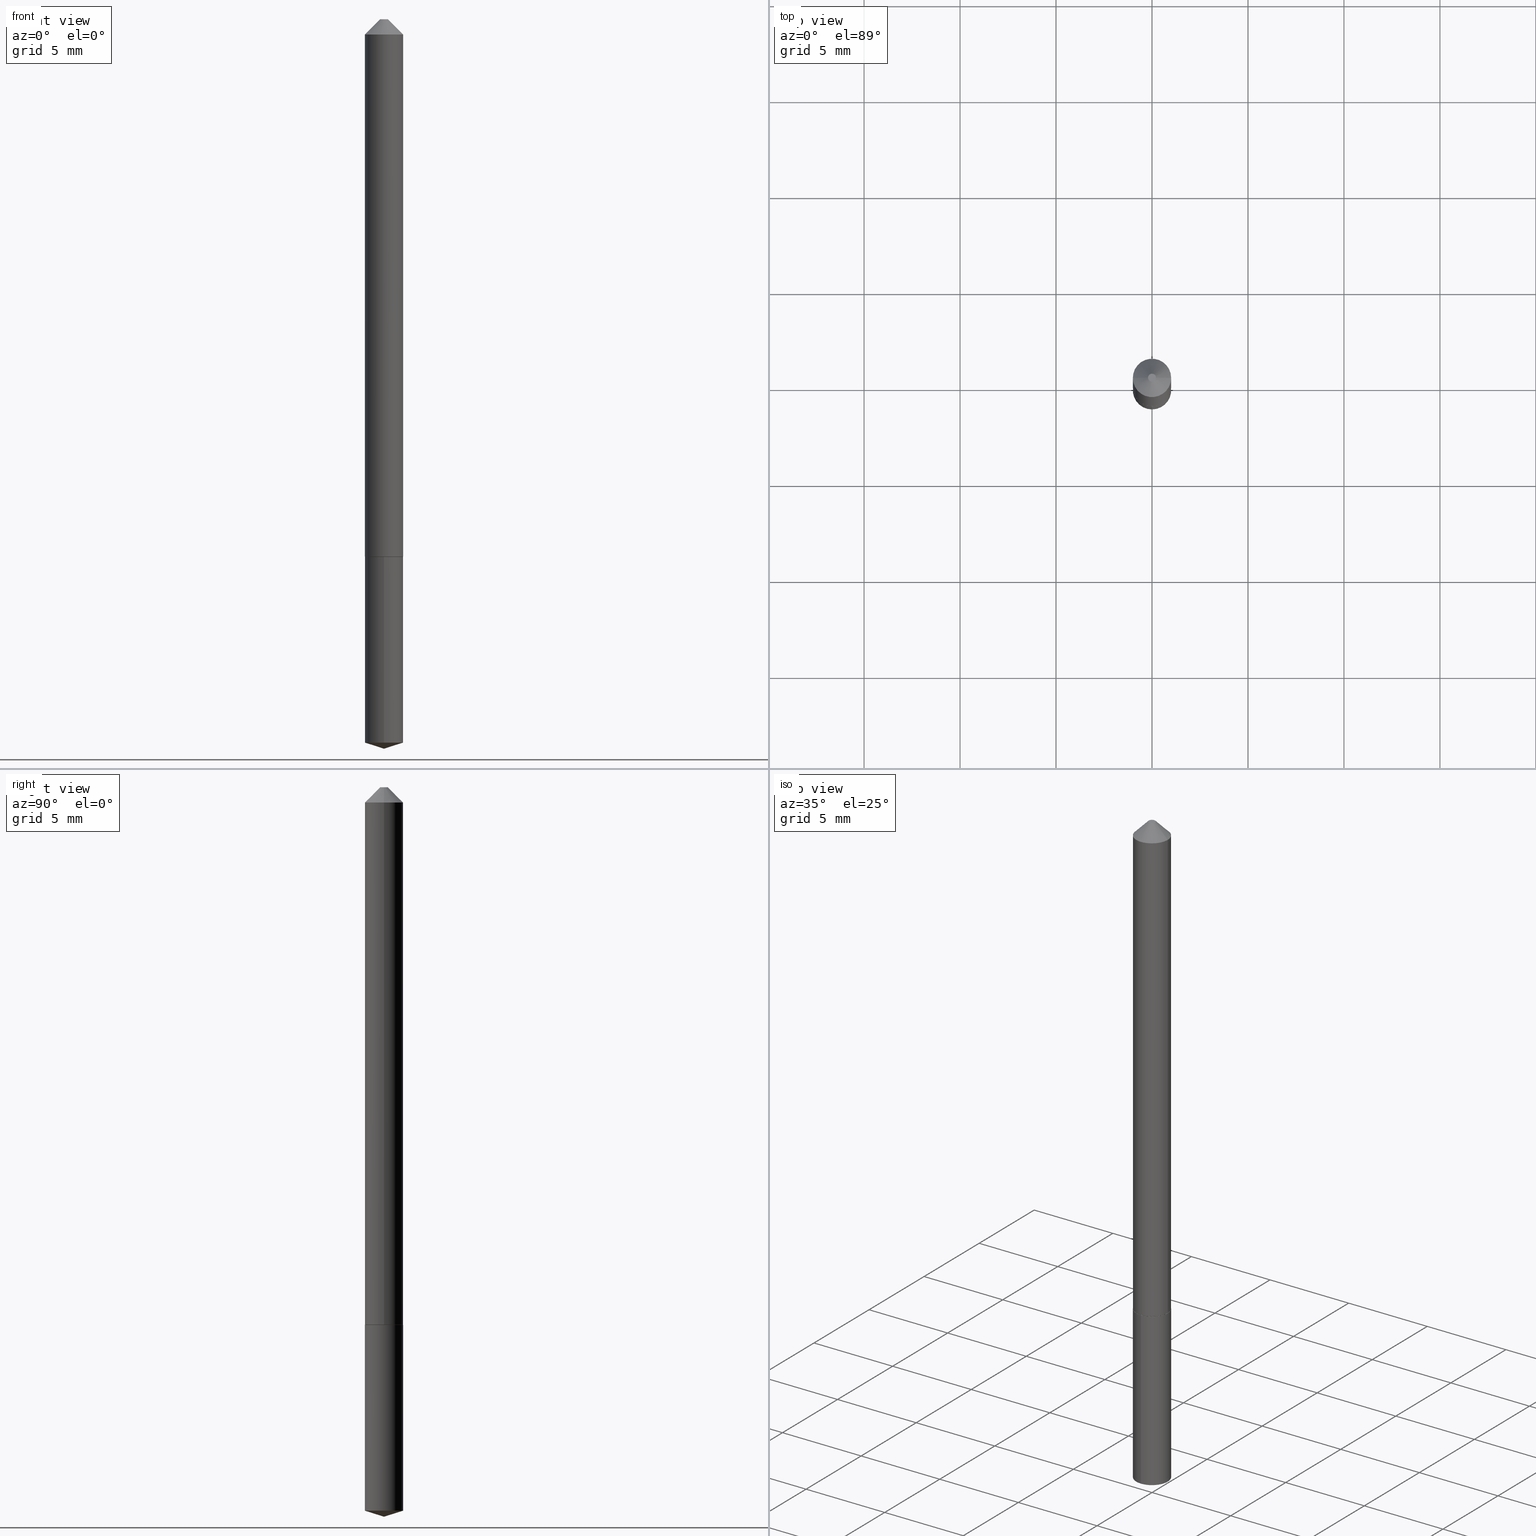
[diagram: canonical four-view strip — front | top / right | iso, engineering-drawing reading convention]
A machine part, canonical four-view strip (front | top / right | iso — engineering-drawing reading convention). The complete STEP part file that produces these views, byte-faithful:
ISO-10303-21;
HEADER;
FILE_DESCRIPTION (( 'STEP AP203' ),
    '1' );
FILE_NAME ('68668.STEP',
    '2024-04-23T13:29:45',
    ( '' ),
    ( '' ),
    'SwSTEP 2.0',
    'SolidWorks 2023',
    '' );
FILE_SCHEMA (( 'CONFIG_CONTROL_DESIGN' ));
ENDSEC;

DATA;
#1 = AXIS2_PLACEMENT_3D ( 'NONE', #199, #323, #358 ) ;
#2 = PERSON_AND_ORGANIZATION ( #178, #217 ) ;
#3 = VERTEX_POINT ( 'NONE', #222 ) ;
#4 = ORIENTED_EDGE ( 'NONE', *, *, #138, .T. ) ;
#5 = AXIS2_PLACEMENT_3D ( 'NONE', #385, #287, #231 ) ;
#6 = ADVANCED_FACE ( 'NONE', ( #349 ), #102, .T. ) ;
#7 = EDGE_LOOP ( 'NONE', ( #357, #59, #150 ) ) ;
#8 = ORIENTED_EDGE ( 'NONE', *, *, #27, .F. ) ;
#9 = EDGE_CURVE ( 'NONE', #272, #367, #316, .T. ) ;
#10 = FACE_OUTER_BOUND ( 'NONE', #93, .T. ) ;
#11 = APPROVAL_PERSON_ORGANIZATION ( #151, #133, #70 ) ;
#12 = DIRECTION ( 'NONE',  ( 2.438088387897960049E-29, -3.491481338843145188E-15, -1.000000000000000000 ) ) ;
#13 = CARTESIAN_POINT ( 'NONE',  ( 3.658930430259361252E-29, -5.223226381351501091E-15, -1.496099999999999985 ) ) ;
#14 = PERSON_AND_ORGANIZATION_ROLE ( 'classification_officer' ) ;
#15 = DIRECTION ( 'NONE',  ( -1.000000000000000000, 6.982962677686265922E-15, -4.876176775795935793E-29 ) ) ;
#16 = AXIS2_PLACEMENT_3D ( 'NONE', #321, #19, #82 ) ;
#17 = LINE ( 'NONE', #168, #40 ) ;
#18 = CIRCLE ( 'NONE', #1, 0.03885000000000018994 ) ;
#19 = DIRECTION ( 'NONE',  ( -2.438088387897960049E-29, 3.491481338843145188E-15, 1.000000000000000000 ) ) ;
#20 = DIRECTION ( 'NONE',  ( 0.7071067811861854180, -2.468850131078463428E-15, 0.7071067811869097275 ) ) ;
#21 = ADVANCED_FACE ( 'NONE', ( #194 ), #280, .F. ) ;
#22 = CARTESIAN_POINT ( 'NONE',  ( 2.795985665216263153E-16, 0.03934999999999615194, -1.102400000000000047 ) ) ;
#23 = PRODUCT_RELATED_PRODUCT_CATEGORY ( 'detail', '', ( #332 ) ) ;
#24 = EDGE_LOOP ( 'NONE', ( #322, #245, #244, #183 ) ) ;
#25 = CARTESIAN_POINT ( 'NONE',  ( 0.03935000000000000997, -3.838883732058036724E-16, -0.03125000000000021511 ) ) ;
#26 = DIRECTION ( 'NONE',  ( -2.445645632149830585E-29, 3.491228113997394942E-15, 1.000000000000000000 ) ) ;
#27 = EDGE_CURVE ( 'NONE', #95, #212, #160, .T. ) ;
#28 =( LENGTH_UNIT ( ) NAMED_UNIT ( * ) SI_UNIT ( $, .METRE. ) );
#29 = EDGE_LOOP ( 'NONE', ( #132, #128, #301 ) ) ;
#30 = DIRECTION ( 'NONE',  ( 1.000000000000000000, -6.982962677686273810E-15, 0.000000000000000000 ) ) ;
#31 = ORIENTED_EDGE ( 'NONE', *, *, #44, .F. ) ;
#32 = CARTESIAN_POINT ( 'NONE',  ( -2.747795813669276519E-16, -0.03935000000000385412, -1.102399999999999824 ) ) ;
#33 = EDGE_LOOP ( 'NONE', ( #364, #303, #158, #386 ) ) ;
#34 = AXIS2_PLACEMENT_3D ( 'NONE', #187, #344, #190 ) ;
#35 = ORIENTED_EDGE ( 'NONE', *, *, #346, .T. ) ;
#36 = DATE_AND_TIME ( #155, #198 ) ;
#37 = DIRECTION ( 'NONE',  ( -2.445645632149830585E-29, 3.491228113997394942E-15, 1.000000000000000000 ) ) ;
#38 = ORIENTED_EDGE ( 'NONE', *, *, #213, .F. ) ;
#39 = AXIS2_PLACEMENT_3D ( 'NONE', #89, #153, #30 ) ;
#40 = VECTOR ( 'NONE', #205, 39.37007874015748143 ) ;
#41 = ORIENTED_EDGE ( 'NONE', *, *, #106, .T. ) ;
#42 = CC_DESIGN_PERSON_AND_ORGANIZATION_ASSIGNMENT ( #373, #126, ( #97 ) ) ;
#43 = DIRECTION ( 'NONE',  ( 1.000000000000000000, -6.982962677686265922E-15, 4.876176775795935793E-29 ) ) ;
#44 = EDGE_CURVE ( 'NONE', #152, #289, #325, .T. ) ;
#45 = DIRECTION ( 'NONE',  ( -2.445645632149830585E-29, 3.491228113997394942E-15, 1.000000000000000000 ) ) ;
#46 = CC_DESIGN_DATE_AND_TIME_ASSIGNMENT ( #63, #181, ( #117 ) ) ;
#47 = CC_DESIGN_DATE_AND_TIME_ASSIGNMENT ( #343, #186, ( #83 ) ) ;
#48 = CC_DESIGN_APPROVAL ( #131, ( #117 ) ) ;
#49 = AXIS2_PLACEMENT_3D ( 'NONE', #71, #371, #252 ) ;
#50 = CARTESIAN_POINT ( 'NONE',  ( -0.008100000000000001296, 1.111163936086822027E-16, 2.388061258331477869E-19 ) ) ;
#51 = ADVANCED_FACE ( 'NONE', ( #281 ), #154, .T. ) ;
#52 = CARTESIAN_POINT ( 'NONE',  ( 7.642090019328603538E-31, -1.091087918388490390E-16, -0.03125000000000021511 ) ) ;
#53 = DIRECTION ( 'NONE',  ( 1.000000000000000000, -6.982962677686273810E-15, 0.000000000000000000 ) ) ;
#54 = ORIENTED_EDGE ( 'NONE', *, *, #279, .F. ) ;
#55 = CARTESIAN_POINT ( 'NONE',  ( 0.03935000000000000997, -3.790693880511588488E-16, -0.03125000000000021511 ) ) ;
#56 = DIRECTION ( 'NONE',  ( 2.445468806185136597E-29, -3.491481338843145583E-15, -1.000000000000000000 ) ) ;
#57 = CYLINDRICAL_SURFACE ( 'NONE', #268, 0.03935000000000000303 ) ;
#58 = LINE ( 'NONE', #175, #338 ) ;
#59 = ORIENTED_EDGE ( 'NONE', *, *, #112, .T. ) ;
#60 = VECTOR ( 'NONE', #195, 39.37007874015748143 ) ;
#61 = CALENDAR_DATE ( 2024, 23, 4 ) ;
#62 = VERTEX_POINT ( 'NONE', #13 ) ;
#63 = DATE_AND_TIME ( #61, #354 ) ;
#64 = VERTEX_POINT ( 'NONE', #165 ) ;
#65 = COORDINATED_UNIVERSAL_TIME_OFFSET ( 5, 0, .BEHIND. ) ;
#66 = ORIENTED_EDGE ( 'NONE', *, *, #324, .T. ) ;
#67 = PERSON_AND_ORGANIZATION ( #178, #217 ) ;
#68 = CARTESIAN_POINT ( 'NONE',  ( 7.642090019328603538E-31, -1.091087918388490390E-16, -0.03125000000000021511 ) ) ;
#69 = ADVANCED_FACE ( 'NONE', ( #256 ), #283, .T. ) ;
#70 = APPROVAL_ROLE ( '' ) ;
#71 = CARTESIAN_POINT ( 'NONE',  ( -5.839929314523186348E-48, 8.337871319499097864E-34, 2.388061258337338474E-19 ) ) ;
#72 = CARTESIAN_POINT ( 'NONE',  ( 3.658540564372403790E-29, -5.223784691491413128E-15, -1.496099999999999985 ) ) ;
#73 = ADVANCED_FACE ( 'NONE', ( #10 ), #248, .T. ) ;
#74 = CARTESIAN_POINT ( 'NONE',  ( 0.03935000000000007242, -2.747795813669550648E-16, 1.918775561275704227E-30 ) ) ;
#75 = DIRECTION ( 'NONE',  ( 6.776566513254238416E-15, 0.9537169507482260444, 0.3007057995042758392 ) ) ;
#76 = DIRECTION ( 'NONE',  ( -6.982962677686266711E-15, -1.000000000000000000, 6.942434545525446301E-15 ) ) ;
#77 = ADVANCED_FACE ( 'NONE', ( #351 ), #309, .F. ) ;
#78 = VECTOR ( 'NONE', #20, 39.37007874015748143 ) ;
#79 = DIRECTION ( 'NONE',  ( 1.000000000000000000, -6.982962677686265922E-15, 0.000000000000000000 ) ) ;
#80 = LINE ( 'NONE', #55, #383 ) ;
#81 = ORIENTED_EDGE ( 'NONE', *, *, #253, .F. ) ;
#82 = DIRECTION ( 'NONE',  ( 1.000000000000000000, -6.982962677686265922E-15, 4.876176775795935793E-29 ) ) ;
#83 = SECURITY_CLASSIFICATION ( '', '', #193 ) ;
#84 = DIRECTION ( 'NONE',  ( -6.982962677686266711E-15, -1.000000000000000000, 3.471217272762723151E-15 ) ) ;
#85 = AXIS2_PLACEMENT_3D ( 'NONE', #130, #250, #374 ) ;
#86 = DIRECTION ( 'NONE',  ( -0.7071067811865452413, 2.468850131082233000E-15, -0.7071067811865497932 ) ) ;
#87 = APPROVAL_DATE_TIME ( #207, #131 ) ;
#88 = ORIENTED_EDGE ( 'NONE', *, *, #9, .T. ) ;
#89 = CARTESIAN_POINT ( 'NONE',  ( 2.694662077535401669E-29, -3.847263287271261815E-15, -1.101899999999999880 ) ) ;
#90 = ORIENTED_EDGE ( 'NONE', *, *, #9, .F. ) ;
#91 = CIRCLE ( 'NONE', #142, 0.03935000000000000997 ) ;
#92 = MECHANICAL_CONTEXT ( 'NONE', #342, 'mechanical' ) ;
#93 = EDGE_LOOP ( 'NONE', ( #4, #305, #215, #90 ) ) ;
#94 = CARTESIAN_POINT ( 'NONE',  ( 0.000000000000000000, 0.000000000000000000, 0.000000000000000000 ) ) ;
#95 = VERTEX_POINT ( 'NONE', #379 ) ;
#96 = CARTESIAN_POINT ( 'NONE',  ( -2.747795813669276519E-16, -0.03935000000000385412, -1.102399999999999824 ) ) ;
#97 = PRODUCT_DEFINITION_FORMATION_WITH_SPECIFIED_SOURCE ( 'ANY', '', #332, .NOT_KNOWN. ) ;
#98 = CARTESIAN_POINT ( 'NONE',  ( 2.694662077535401669E-29, -3.847263287271261815E-15, -1.101899999999999880 ) ) ;
#99 = LINE ( 'NONE', #72, #60 ) ;
#100 = CARTESIAN_POINT ( 'NONE',  ( 0.000000000000000000, 0.000000000000000000, 0.000000000000000000 ) ) ;
#101 = CC_DESIGN_APPROVAL ( #247, ( #83 ) ) ;
#102 = CONICAL_SURFACE ( 'NONE', #366, 0.03935000000000012099, 0.7853981633969361331 ) ;
#103 = APPROVAL_DATE_TIME ( #36, #133 ) ;
#104 = CARTESIAN_POINT ( 'NONE',  ( 3.658933848922989252E-29, -5.223226381351502669E-15, -1.496099999999999985 ) ) ;
#105 = CARTESIAN_POINT ( 'NONE',  ( 2.695884811938494470E-29, -3.849009027940684107E-15, -1.102400000000000047 ) ) ;
#106 = EDGE_CURVE ( 'NONE', #289, #152, #257, .T. ) ;
#107 = DIRECTION ( 'NONE',  ( 1.000000000000000000, -6.982962677686273810E-15, 0.000000000000000000 ) ) ;
#108 = APPROVAL_PERSON_ORGANIZATION ( #300, #131, #362 ) ;
#109 = DIRECTION ( 'NONE',  ( -6.982962677686266711E-15, -1.000000000000000000, 3.500519750498814873E-15 ) ) ;
#110 = ORIENTED_EDGE ( 'NONE', *, *, #27, .T. ) ;
#111 = CARTESIAN_POINT ( 'NONE',  ( 0.008100000000000001296, -2.173197109165541672E-16, 2.388061258346906975E-19 ) ) ;
#112 = EDGE_CURVE ( 'NONE', #62, #274, #347, .T. ) ;
#113 = DIRECTION ( 'NONE',  ( -2.445645632149830585E-29, 3.491228113997394942E-15, 1.000000000000000000 ) ) ;
#114 = CIRCLE ( 'NONE', #310, 0.03935000000000000997 ) ;
#115 = CALENDAR_DATE ( 2024, 23, 4 ) ;
#116 = DIRECTION ( 'NONE',  ( 1.000000000000000000, 0.000000000000000000, 0.000000000000000000 ) ) ;
#117 = PRODUCT_DEFINITION ( 'UNKNOWN', '', #97, #233 ) ;
#118 = ORIENTED_EDGE ( 'NONE', *, *, #149, .F. ) ;
#119 = COORDINATED_UNIVERSAL_TIME_OFFSET ( 5, 0, .BEHIND. ) ;
#120 =( NAMED_UNIT ( * ) SI_UNIT ( $, .STERADIAN. ) SOLID_ANGLE_UNIT ( ) );
#121 = LOCAL_TIME ( 9, 29, 45.00000000000000000, #119 ) ;
#122 = EDGE_LOOP ( 'NONE', ( #329, #41 ) ) ;
#123 = AXIS2_PLACEMENT_3D ( 'NONE', #218, #341, #164 ) ;
#124 = VERTEX_POINT ( 'NONE', #224 ) ;
#125 = EDGE_CURVE ( 'NONE', #62, #272, #99, .T. ) ;
#126 = PERSON_AND_ORGANIZATION_ROLE ( 'design_supplier' ) ;
#127 = FACE_OUTER_BOUND ( 'NONE', #29, .T. ) ;
#128 = ORIENTED_EDGE ( 'NONE', *, *, #125, .T. ) ;
#129 = AXIS2_PLACEMENT_3D ( 'NONE', #261, #381, #139 ) ;
#130 = CARTESIAN_POINT ( 'NONE',  ( -5.839929314523186348E-48, 8.337871319499097864E-34, 2.388061258337338474E-19 ) ) ;
#131 = APPROVAL ( #389, 'UNSPECIFIED' ) ;
#132 = ORIENTED_EDGE ( 'NONE', *, *, #112, .F. ) ;
#133 = APPROVAL ( #302, 'UNSPECIFIED' ) ;
#134 = CALENDAR_DATE ( 2024, 23, 4 ) ;
#135 = DIRECTION ( 'NONE',  ( -2.445468806185136877E-29, 3.491481338843145188E-15, 1.000000000000000000 ) ) ;
#136 = VECTOR ( 'NONE', #75, 39.37007874015748854 ) ;
#137 = FACE_OUTER_BOUND ( 'NONE', #7, .T. ) ;
#138 = EDGE_CURVE ( 'NONE', #272, #274, #262, .T. ) ;
#139 = DIRECTION ( 'NONE',  ( -6.982962677686266711E-15, -1.000000000000000000, 3.500519750498814873E-15 ) ) ;
#140 = DIRECTION ( 'NONE',  ( -6.982962677686266711E-15, -1.000000000000000000, 3.471217272762723151E-15 ) ) ;
#141 = VECTOR ( 'NONE', #86, 39.37007874015748143 ) ;
#142 = AXIS2_PLACEMENT_3D ( 'NONE', #52, #146, #201 ) ;
#143 = LINE ( 'NONE', #382, #141 ) ;
#144 = ADVANCED_FACE ( 'NONE', ( #127 ), #314, .T. ) ;
#145 = EDGE_LOOP ( 'NONE', ( #156, #335, #110, #38 ) ) ;
#146 = DIRECTION ( 'NONE',  ( -2.445468806185136597E-29, 3.491481338843145583E-15, 1.000000000000000000 ) ) ;
#147 = DIRECTION ( 'NONE',  ( 0.000000000000000000, 0.000000000000000000, 1.000000000000000000 ) ) ;
#148 = AXIS2_PLACEMENT_3D ( 'NONE', #259, #226, #140 ) ;
#149 = EDGE_CURVE ( 'NONE', #274, #124, #203, .T. ) ;
#150 = ORIENTED_EDGE ( 'NONE', *, *, #138, .F. ) ;
#151 = PERSON_AND_ORGANIZATION ( #178, #217 ) ;
#152 = VERTEX_POINT ( 'NONE', #50 ) ;
#153 = DIRECTION ( 'NONE',  ( -2.445468806185136597E-29, 3.491481338843145583E-15, 1.000000000000000000 ) ) ;
#154 = CONICAL_SURFACE ( 'NONE', #162, 0.03935000000000000997, 0.7853981633974450594 ) ;
#155 = CALENDAR_DATE ( 2024, 23, 4 ) ;
#156 = ORIENTED_EDGE ( 'NONE', *, *, #346, .F. ) ;
#157 = APPLICATION_CONTEXT ( 'configuration controlled 3d designs of mechanical parts and assemblies' ) ;
#158 = ORIENTED_EDGE ( 'NONE', *, *, #220, .T. ) ;
#159 = APPROVAL_STATUS ( 'not_yet_approved' ) ;
#160 = LINE ( 'NONE', #74, #269 ) ;
#161 = LOCAL_TIME ( 9, 29, 45.00000000000000000, #189 ) ;
#162 = AXIS2_PLACEMENT_3D ( 'NONE', #68, #313, #221 ) ;
#163 = PERSON_AND_ORGANIZATION ( #178, #217 ) ;
#164 = DIRECTION ( 'NONE',  ( 6.982962677686265922E-15, 1.000000000000000000, -3.491228113997394942E-15 ) ) ;
#165 = CARTESIAN_POINT ( 'NONE',  ( -0.03935000000000012099, -3.567664720749661631E-15, -1.101899999999999880 ) ) ;
#166 = CARTESIAN_POINT ( 'NONE',  ( -9.262652561094516578E-28, 1.322264202115074889E-13, 37.87397874015748300 ) ) ;
#167 = DIMENSIONAL_EXPONENTS ( 1.000000000000000000, 0.000000000000000000, 0.000000000000000000, 0.000000000000000000, 0.000000000000000000, 0.000000000000000000, 0.000000000000000000 ) ;
#168 = CARTESIAN_POINT ( 'NONE',  ( -0.03935000000000012099, -3.567664720749661631E-15, -1.101899999999999880 ) ) ;
#169 = DIRECTION ( 'NONE',  ( -2.445468806185136597E-29, 3.491481338843145583E-15, 1.000000000000000000 ) ) ;
#170 = CARTESIAN_POINT ( 'NONE',  ( 0.03885000000000018994, -4.120297127968797595E-15, -1.102400000000000269 ) ) ;
#171 = ORIENTED_EDGE ( 'NONE', *, *, #213, .T. ) ;
#172 = CONICAL_SURFACE ( 'NONE', #284, 0.03935000000000000997, 0.7853981633974450594 ) ;
#173 = PLANE ( 'NONE',  #16 ) ;
#174 = PRODUCT_DEFINITION_SHAPE ( 'NONE', 'NONE',  #117 ) ;
#175 = CARTESIAN_POINT ( 'NONE',  ( -0.03935000000000007242, 2.795985665215999377E-16, -1.935600958015308795E-30 ) ) ;
#176 = CIRCLE ( 'NONE', #5, 0.03885000000000018994 ) ;
#177 = ORIENTED_EDGE ( 'NONE', *, *, #266, .T. ) ;
#178 = PERSON ( 'UNSPECIFIED', 'UNSPECIFIED', 'UNSPECIFIED', ('UNSPECIFIED'), ('UNSPECIFIED'), ('UNSPECIFIED') ) ;
#179 = CARTESIAN_POINT ( 'NONE',  ( 2.695884811938494470E-29, -3.849009027940684107E-15, -1.102400000000000047 ) ) ;
#180 = EDGE_LOOP ( 'NONE', ( #118, #333, #88, #81 ) ) ;
#181 = DATE_TIME_ROLE ( 'creation_date' ) ;
#182 = EDGE_CURVE ( 'NONE', #208, #3, #18, .T. ) ;
#183 = ORIENTED_EDGE ( 'NONE', *, *, #297, .F. ) ;
#184 = CIRCLE ( 'NONE', #295, 0.03935000000000012099 ) ;
#185 = ORIENTED_EDGE ( 'NONE', *, *, #200, .T. ) ;
#186 = DATE_TIME_ROLE ( 'classification_date' ) ;
#187 = CARTESIAN_POINT ( 'NONE',  ( 2.695884811938494470E-29, -3.849009027940684107E-15, -1.102400000000000047 ) ) ;
#188 = ADVANCED_FACE ( 'NONE', ( #288 ), #232, .T. ) ;
#189 = COORDINATED_UNIVERSAL_TIME_OFFSET ( 5, 0, .BEHIND. ) ;
#190 = DIRECTION ( 'NONE',  ( -6.982962677686266711E-15, -1.000000000000000000, 3.471217272762723151E-15 ) ) ;
#191 = CARTESIAN_POINT ( 'NONE',  ( 3.628392354000919810E-29, -5.180189843577139767E-15, -1.483692992657611676 ) ) ;
#192 = CONICAL_SURFACE ( 'NONE', #39, 0.03935000000000012099, 0.7853981633969361331 ) ;
#193 = SECURITY_CLASSIFICATION_LEVEL ( 'unclassified' ) ;
#194 = FACE_OUTER_BOUND ( 'NONE', #277, .T. ) ;
#195 = DIRECTION ( 'NONE',  ( -6.659769872151613156E-15, -0.9537169507482240460, 0.3007057995042825005 ) ) ;
#196 = EDGE_CURVE ( 'NONE', #289, #212, #80, .T. ) ;
#197 = CARTESIAN_POINT ( 'NONE',  ( 7.642090019328603538E-31, -1.091087918388490390E-16, -0.03125000000000021511 ) ) ;
#198 = LOCAL_TIME ( 9, 29, 45.00000000000000000, #65 ) ;
#199 = CARTESIAN_POINT ( 'NONE',  ( 2.695884811938495031E-29, -3.849009027940684896E-15, -1.102400000000000269 ) ) ;
#200 = EDGE_CURVE ( 'NONE', #3, #64, #17, .T. ) ;
#201 = DIRECTION ( 'NONE',  ( 1.000000000000000000, -6.982962677686265922E-15, 0.000000000000000000 ) ) ;
#202 = ORIENTED_EDGE ( 'NONE', *, *, #220, .F. ) ;
#203 = LINE ( 'NONE', #22, #360 ) ;
#204 = CIRCLE ( 'NONE', #365, 0.03935000000000000303 ) ;
#205 = DIRECTION ( 'NONE',  ( -0.7071067811861854180, 7.493145998869046229E-15, 0.7071067811869097275 ) ) ;
#206 = DIRECTION ( 'NONE',  ( -2.445468806185136877E-29, 3.491481338843145188E-15, 1.000000000000000000 ) ) ;
#207 = DATE_AND_TIME ( #115, #121 ) ;
#208 = VERTEX_POINT ( 'NONE', #170 ) ;
#209 = AXIS2_PLACEMENT_3D ( 'NONE', #105, #359, #84 ) ;
#210 = AXIS2_PLACEMENT_3D ( 'NONE', #318, #291, #355 ) ;
#211 = MANIFOLD_SOLID_BREP ( 'Body-Move/Copy2[2]', #290 ) ;
#212 = VERTEX_POINT ( 'NONE', #25 ) ;
#213 = EDGE_CURVE ( 'NONE', #370, #212, #91, .T. ) ;
#214 = LENGTH_MEASURE_WITH_UNIT ( LENGTH_MEASURE( 0.02539999999999999897 ), #28 );
#215 = ORIENTED_EDGE ( 'NONE', *, *, #324, .F. ) ;
#216 = ORIENTED_EDGE ( 'NONE', *, *, #312, .F. ) ;
#217 = ORGANIZATION ( 'UNSPECIFIED', 'UNSPECIFIED', '' ) ;
#218 = CARTESIAN_POINT ( 'NONE',  ( 2.695884811938494470E-29, -3.849009027940684107E-15, -1.102400000000000047 ) ) ;
#219 = AXIS2_PLACEMENT_3D ( 'NONE', #100, #315, #43 ) ;
#220 = EDGE_CURVE ( 'NONE', #212, #370, #114, .T. ) ;
#221 = DIRECTION ( 'NONE',  ( -1.000000000000000000, 6.982962677686266711E-15, 0.000000000000000000 ) ) ;
#222 = CARTESIAN_POINT ( 'NONE',  ( -0.03885000000000018994, -3.570313947923772832E-15, -1.102400000000000269 ) ) ;
#223 = ORIENTED_EDGE ( 'NONE', *, *, #253, .T. ) ;
#224 = CARTESIAN_POINT ( 'NONE',  ( 2.795985665216357323E-16, 0.03934999999999615194, -1.102400000000000047 ) ) ;
#225 = CARTESIAN_POINT ( 'NONE',  ( -2.747795813669182842E-16, -0.03935000000000518638, -1.483692992657611454 ) ) ;
#226 = DIRECTION ( 'NONE',  ( -2.445645632149830585E-29, 3.491228113997394942E-15, 1.000000000000000000 ) ) ;
#227 = LOCAL_TIME ( 9, 29, 45.00000000000000000, #308 ) ;
#228 = VECTOR ( 'NONE', #37, 39.37007874015748143 ) ;
#229 = CARTESIAN_POINT ( 'NONE',  ( 2.694662077535401669E-29, -3.847263287271261815E-15, -1.101899999999999880 ) ) ;
#230 = ORIENTED_EDGE ( 'NONE', *, *, #328, .T. ) ;
#231 = DIRECTION ( 'NONE',  ( 1.000000000000000000, -6.982962677686272233E-15, 0.000000000000000000 ) ) ;
#232 = CYLINDRICAL_SURFACE ( 'NONE', #210, 0.03935000000000007242 ) ;
#233 = DESIGN_CONTEXT ( 'detailed design', #157, 'design' ) ;
#234 = CONICAL_SURFACE ( 'NONE', #129, 124.8659371009111254, 1.265363707695882578 ) ;
#235 =( CONVERSION_BASED_UNIT ( 'INCH', #214 ) LENGTH_UNIT ( ) NAMED_UNIT ( #167 ) );
#236 = ADVANCED_FACE ( 'NONE', ( #387 ), #173, .F. ) ;
#237 = ORIENTED_EDGE ( 'NONE', *, *, #182, .F. ) ;
#238 = PERSON_AND_ORGANIZATION ( #178, #217 ) ;
#239 = EDGE_LOOP ( 'NONE', ( #384, #185, #337, #54 ) ) ;
#240 = ADVANCED_FACE ( 'NONE', ( #137 ), #234, .T. ) ;
#241 = FACE_OUTER_BOUND ( 'NONE', #239, .T. ) ;
#242 = EDGE_LOOP ( 'NONE', ( #237, #216 ) ) ;
#243 =( NAMED_UNIT ( * ) PLANE_ANGLE_UNIT ( ) SI_UNIT ( $, .RADIAN. ) );
#244 = ORIENTED_EDGE ( 'NONE', *, *, #279, .T. ) ;
#245 = ORIENTED_EDGE ( 'NONE', *, *, #312, .T. ) ;
#246 = APPROVAL_PERSON_ORGANIZATION ( #163, #247, #306 ) ;
#247 = APPROVAL ( #159, 'UNSPECIFIED' ) ;
#248 = CYLINDRICAL_SURFACE ( 'NONE', #34, 0.03935000000000000303 ) ;
#249 = PERSON_AND_ORGANIZATION ( #178, #217 ) ;
#250 = DIRECTION ( 'NONE',  ( -2.445468806185136597E-29, 3.491481338843145583E-15, 1.000000000000000000 ) ) ;
#251 = DATE_AND_TIME ( #254, #227 ) ;
#252 = DIRECTION ( 'NONE',  ( 1.000000000000000000, -6.982962677686267499E-15, 4.876124714522080850E-29 ) ) ;
#253 = EDGE_CURVE ( 'NONE', #124, #367, #390, .T. ) ;
#254 = CALENDAR_DATE ( 2024, 23, 4 ) ;
#255 = AXIS2_PLACEMENT_3D ( 'NONE', #94, #147, #116 ) ;
#256 = FACE_OUTER_BOUND ( 'NONE', #369, .T. ) ;
#257 = CIRCLE ( 'NONE', #85, 0.008100000000000001296 ) ;
#258 = CARTESIAN_POINT ( 'NONE',  ( 2.694662077535401669E-29, -3.847263287271261815E-15, -1.101899999999999880 ) ) ;
#259 = CARTESIAN_POINT ( 'NONE',  ( 2.695884811938494470E-29, -3.849009027940684107E-15, -1.102400000000000047 ) ) ;
#260 = CC_DESIGN_PERSON_AND_ORGANIZATION_ASSIGNMENT ( #2, #298, ( #332 ) ) ;
#261 = CARTESIAN_POINT ( 'NONE',  ( -9.262652561094516578E-28, 1.322264202115074889E-13, 37.87397874015748300 ) ) ;
#262 = CIRCLE ( 'NONE', #319, 0.03935000000000000303 ) ;
#263 = CARTESIAN_POINT ( 'NONE',  ( 2.795985665216357323E-16, 0.03934999999999481968, -1.483692992657611898 ) ) ;
#264 = EDGE_LOOP ( 'NONE', ( #299, #31, #230, #171 ) ) ;
#265 = LINE ( 'NONE', #320, #78 ) ;
#266 = EDGE_CURVE ( 'NONE', #95, #64, #184, .T. ) ;
#267 = APPLICATION_PROTOCOL_DEFINITION ( 'international standard', 'config_control_design', 1994, #157 ) ;
#268 = AXIS2_PLACEMENT_3D ( 'NONE', #179, #26, #294 ) ;
#269 = VECTOR ( 'NONE', #135, 39.37007874015748143 ) ;
#270 =( GEOMETRIC_REPRESENTATION_CONTEXT ( 3 ) GLOBAL_UNCERTAINTY_ASSIGNED_CONTEXT ( ( #388 ) ) GLOBAL_UNIT_ASSIGNED_CONTEXT ( ( #235, #243, #120 ) ) REPRESENTATION_CONTEXT ( 'NONE', 'WORKASPACE' ) );
#271 = APPLICATION_PROTOCOL_DEFINITION ( 'international standard', 'config_control_design', 1994, #342 ) ;
#272 = VERTEX_POINT ( 'NONE', #225 ) ;
#273 = CARTESIAN_POINT ( 'NONE',  ( -0.03935000000000000997, -1.698587473033454288E-15, -0.03125000000000021511 ) ) ;
#274 = VERTEX_POINT ( 'NONE', #263 ) ;
#275 = CC_DESIGN_SECURITY_CLASSIFICATION ( #83, ( #97 ) ) ;
#276 = FACE_OUTER_BOUND ( 'NONE', #33, .T. ) ;
#277 = EDGE_LOOP ( 'NONE', ( #66, #223 ) ) ;
#278 = DIRECTION ( 'NONE',  ( -6.982962677686266711E-15, -1.000000000000000000, 6.942434545525446301E-15 ) ) ;
#279 = EDGE_CURVE ( 'NONE', #208, #95, #265, .T. ) ;
#280 = PLANE ( 'NONE',  #123 ) ;
#281 = FACE_OUTER_BOUND ( 'NONE', #264, .T. ) ;
#282 = DIRECTION ( 'NONE',  ( 1.000000000000000000, -6.982962677686273810E-15, 0.000000000000000000 ) ) ;
#283 = CYLINDRICAL_SURFACE ( 'NONE', #219, 0.03935000000000007242 ) ;
#284 = AXIS2_PLACEMENT_3D ( 'NONE', #334, #56, #361 ) ;
#285 = DIRECTION ( 'NONE',  ( 0.7071067811865452413, -7.319954787623248157E-15, -0.7071067811865497932 ) ) ;
#286 = DIRECTION ( 'NONE',  ( -2.445468806185136597E-29, 3.491481338843145583E-15, 1.000000000000000000 ) ) ;
#287 = DIRECTION ( 'NONE',  ( -2.445468806185136597E-29, 3.491481338843145583E-15, 1.000000000000000000 ) ) ;
#288 = FACE_OUTER_BOUND ( 'NONE', #145, .T. ) ;
#289 = VERTEX_POINT ( 'NONE', #111 ) ;
#290 = CLOSED_SHELL ( 'NONE', ( #336, #69, #372, #236, #6, #188, #51, #77 ) ) ;
#291 = DIRECTION ( 'NONE',  ( -2.445468806185136597E-29, 3.491481338843145583E-15, 1.000000000000000000 ) ) ;
#292 = EDGE_CURVE ( 'NONE', #274, #272, #204, .T. ) ;
#293 = CC_DESIGN_PERSON_AND_ORGANIZATION_ASSIGNMENT ( #67, #311, ( #97 ) ) ;
#294 = DIRECTION ( 'NONE',  ( -6.982962677686266711E-15, -1.000000000000000000, 3.471217272762723151E-15 ) ) ;
#295 = AXIS2_PLACEMENT_3D ( 'NONE', #258, #380, #53 ) ;
#296 = AXIS2_PLACEMENT_3D ( 'NONE', #377, #12, #15 ) ;
#297 = EDGE_CURVE ( 'NONE', #64, #95, #348, .T. ) ;
#298 = PERSON_AND_ORGANIZATION_ROLE ( 'design_owner' ) ;
#299 = ORIENTED_EDGE ( 'NONE', *, *, #196, .F. ) ;
#300 = PERSON_AND_ORGANIZATION ( #178, #217 ) ;
#301 = ORIENTED_EDGE ( 'NONE', *, *, #292, .F. ) ;
#302 = APPROVAL_STATUS ( 'not_yet_approved' ) ;
#303 = ORIENTED_EDGE ( 'NONE', *, *, #196, .T. ) ;
#304 = CLOSED_SHELL ( 'NONE', ( #73, #240, #144, #353, #21 ) ) ;
#305 = ORIENTED_EDGE ( 'NONE', *, *, #149, .T. ) ;
#306 = APPROVAL_ROLE ( '' ) ;
#307 = DIRECTION ( 'NONE',  ( -2.445468806185136597E-29, 3.491481338843145583E-15, 1.000000000000000000 ) ) ;
#308 = COORDINATED_UNIVERSAL_TIME_OFFSET ( 5, 0, .BEHIND. ) ;
#309 = PLANE ( 'NONE',  #296 ) ;
#310 = AXIS2_PLACEMENT_3D ( 'NONE', #197, #286, #79 ) ;
#311 = PERSON_AND_ORGANIZATION_ROLE ( 'creator' ) ;
#312 = EDGE_CURVE ( 'NONE', #3, #208, #176, .T. ) ;
#313 = DIRECTION ( 'NONE',  ( 2.445468806185136597E-29, -3.491481338843145583E-15, -1.000000000000000000 ) ) ;
#314 = CONICAL_SURFACE ( 'NONE', #340, 124.8659371009111254, 1.265363707695882578 ) ;
#315 = DIRECTION ( 'NONE',  ( -2.445468806185136597E-29, 3.491481338843145583E-15, 1.000000000000000000 ) ) ;
#316 = LINE ( 'NONE', #96, #228 ) ;
#317 = CIRCLE ( 'NONE', #148, 0.03935000000000000303 ) ;
#318 = CARTESIAN_POINT ( 'NONE',  ( 0.000000000000000000, 0.000000000000000000, 0.000000000000000000 ) ) ;
#319 = AXIS2_PLACEMENT_3D ( 'NONE', #191, #45, #278 ) ;
#320 = CARTESIAN_POINT ( 'NONE',  ( 0.03935000000000012099, -4.122042868638216732E-15, -1.101899999999999880 ) ) ;
#321 = CARTESIAN_POINT ( 'NONE',  ( -1.065510841551269062E-31, -7.724928240573211775E-15, -1.102400000000000047 ) ) ;
#322 = ORIENTED_EDGE ( 'NONE', *, *, #200, .F. ) ;
#323 = DIRECTION ( 'NONE',  ( -2.445468806185136597E-29, 3.491481338843145583E-15, 1.000000000000000000 ) ) ;
#324 = EDGE_CURVE ( 'NONE', #367, #124, #317, .T. ) ;
#325 = CIRCLE ( 'NONE', #49, 0.008100000000000001296 ) ;
#326 = CARTESIAN_POINT ( 'NONE',  ( 3.628392354000919810E-29, -5.180189843577139767E-15, -1.483692992657611676 ) ) ;
#327 = FACE_OUTER_BOUND ( 'NONE', #180, .T. ) ;
#328 = EDGE_CURVE ( 'NONE', #152, #370, #143, .T. ) ;
#329 = ORIENTED_EDGE ( 'NONE', *, *, #44, .T. ) ;
#330 = CC_DESIGN_APPROVAL ( #133, ( #97 ) ) ;
#331 = COORDINATED_UNIVERSAL_TIME_OFFSET ( 5, 0, .BEHIND. ) ;
#332 = PRODUCT ( '68668', '68668', '', ( #92 ) ) ;
#333 = ORIENTED_EDGE ( 'NONE', *, *, #292, .T. ) ;
#334 = CARTESIAN_POINT ( 'NONE',  ( 7.642090019328603538E-31, -1.091087918388490390E-16, -0.03125000000000021511 ) ) ;
#335 = ORIENTED_EDGE ( 'NONE', *, *, #297, .T. ) ;
#336 = ADVANCED_FACE ( 'NONE', ( #276 ), #172, .T. ) ;
#337 = ORIENTED_EDGE ( 'NONE', *, *, #266, .F. ) ;
#338 = VECTOR ( 'NONE', #206, 39.37007874015748143 ) ;
#339 = APPROVAL_DATE_TIME ( #251, #247 ) ;
#340 = AXIS2_PLACEMENT_3D ( 'NONE', #166, #113, #109 ) ;
#341 = DIRECTION ( 'NONE',  ( 2.445645632149830305E-29, -3.491228113997394942E-15, -1.000000000000000000 ) ) ;
#342 = APPLICATION_CONTEXT ( 'configuration controlled 3d designs of mechanical parts and assemblies' ) ;
#343 = DATE_AND_TIME ( #134, #161 ) ;
#344 = DIRECTION ( 'NONE',  ( -2.445645632149830585E-29, 3.491228113997394942E-15, 1.000000000000000000 ) ) ;
#345 = ADVANCED_BREP_SHAPE_REPRESENTATION ( '68668', ( #350, #211, #255 ), #270 ) ;
#346 = EDGE_CURVE ( 'NONE', #64, #370, #58, .T. ) ;
#347 = LINE ( 'NONE', #104, #136 ) ;
#348 = CIRCLE ( 'NONE', #378, 0.03935000000000012099 ) ;
#349 = FACE_OUTER_BOUND ( 'NONE', #24, .T. ) ;
#350 = MANIFOLD_SOLID_BREP ( 'Body-Move/Copy2[1]', #304 ) ;
#351 = FACE_OUTER_BOUND ( 'NONE', #122, .T. ) ;
#352 = DIRECTION ( 'NONE',  ( -2.445645632149830585E-29, 3.491228113997394942E-15, 1.000000000000000000 ) ) ;
#353 = ADVANCED_FACE ( 'NONE', ( #327 ), #57, .T. ) ;
#354 = LOCAL_TIME ( 9, 29, 45.00000000000000000, #331 ) ;
#355 = DIRECTION ( 'NONE',  ( 1.000000000000000000, -6.982962677686265922E-15, 4.876176775795935793E-29 ) ) ;
#356 = DIRECTION ( 'NONE',  ( -2.445645632149830585E-29, 3.491228113997394942E-15, 1.000000000000000000 ) ) ;
#357 = ORIENTED_EDGE ( 'NONE', *, *, #125, .F. ) ;
#358 = DIRECTION ( 'NONE',  ( 1.000000000000000000, -6.982962677686272233E-15, 0.000000000000000000 ) ) ;
#359 = DIRECTION ( 'NONE',  ( -2.445645632149830585E-29, 3.491228113997394942E-15, 1.000000000000000000 ) ) ;
#360 = VECTOR ( 'NONE', #352, 39.37007874015748143 ) ;
#361 = DIRECTION ( 'NONE',  ( -1.000000000000000000, 6.982962677686266711E-15, 0.000000000000000000 ) ) ;
#362 = APPROVAL_ROLE ( '' ) ;
#363 = PERSON_AND_ORGANIZATION_ROLE ( 'creator' ) ;
#364 = ORIENTED_EDGE ( 'NONE', *, *, #106, .F. ) ;
#365 = AXIS2_PLACEMENT_3D ( 'NONE', #326, #356, #76 ) ;
#366 = AXIS2_PLACEMENT_3D ( 'NONE', #98, #307, #282 ) ;
#367 = VERTEX_POINT ( 'NONE', #32 ) ;
#368 = CC_DESIGN_PERSON_AND_ORGANIZATION_ASSIGNMENT ( #238, #363, ( #117 ) ) ;
#369 = EDGE_LOOP ( 'NONE', ( #177, #35, #202, #8 ) ) ;
#370 = VERTEX_POINT ( 'NONE', #273 ) ;
#371 = DIRECTION ( 'NONE',  ( -2.445468806185136597E-29, 3.491481338843145583E-15, 1.000000000000000000 ) ) ;
#372 = ADVANCED_FACE ( 'NONE', ( #241 ), #192, .T. ) ;
#373 = PERSON_AND_ORGANIZATION ( #178, #217 ) ;
#374 = DIRECTION ( 'NONE',  ( 1.000000000000000000, -6.982962677686267499E-15, 4.876124714522080850E-29 ) ) ;
#375 = CC_DESIGN_PERSON_AND_ORGANIZATION_ASSIGNMENT ( #249, #14, ( #83 ) ) ;
#376 = SHAPE_DEFINITION_REPRESENTATION ( #174, #345 ) ;
#377 = CARTESIAN_POINT ( 'NONE',  ( -2.919964657261593174E-48, 4.168935659749548932E-34, 1.194030629168669237E-19 ) ) ;
#378 = AXIS2_PLACEMENT_3D ( 'NONE', #229, #169, #107 ) ;
#379 = CARTESIAN_POINT ( 'NONE',  ( 0.03935000000000012099, -4.122042868638216732E-15, -1.101899999999999880 ) ) ;
#380 = DIRECTION ( 'NONE',  ( -2.445468806185136597E-29, 3.491481338843145583E-15, 1.000000000000000000 ) ) ;
#381 = DIRECTION ( 'NONE',  ( -2.445645632149830585E-29, 3.491228113997394942E-15, 1.000000000000000000 ) ) ;
#382 = CARTESIAN_POINT ( 'NONE',  ( -0.03935000000000000997, 1.656707895281056191E-16, -0.03125000000000021511 ) ) ;
#383 = VECTOR ( 'NONE', #285, 39.37007874015748143 ) ;
#384 = ORIENTED_EDGE ( 'NONE', *, *, #182, .T. ) ;
#385 = CARTESIAN_POINT ( 'NONE',  ( 2.695884811938495031E-29, -3.849009027940684896E-15, -1.102400000000000269 ) ) ;
#386 = ORIENTED_EDGE ( 'NONE', *, *, #328, .F. ) ;
#387 = FACE_OUTER_BOUND ( 'NONE', #242, .T. ) ;
#388 = UNCERTAINTY_MEASURE_WITH_UNIT (LENGTH_MEASURE( 1.000000000000000082E-05 ), #235, 'distance_accuracy_value', 'NONE');
#389 = APPROVAL_STATUS ( 'not_yet_approved' ) ;
#390 = CIRCLE ( 'NONE', #209, 0.03935000000000000303 ) ;
ENDSEC;
END-ISO-10303-21;
